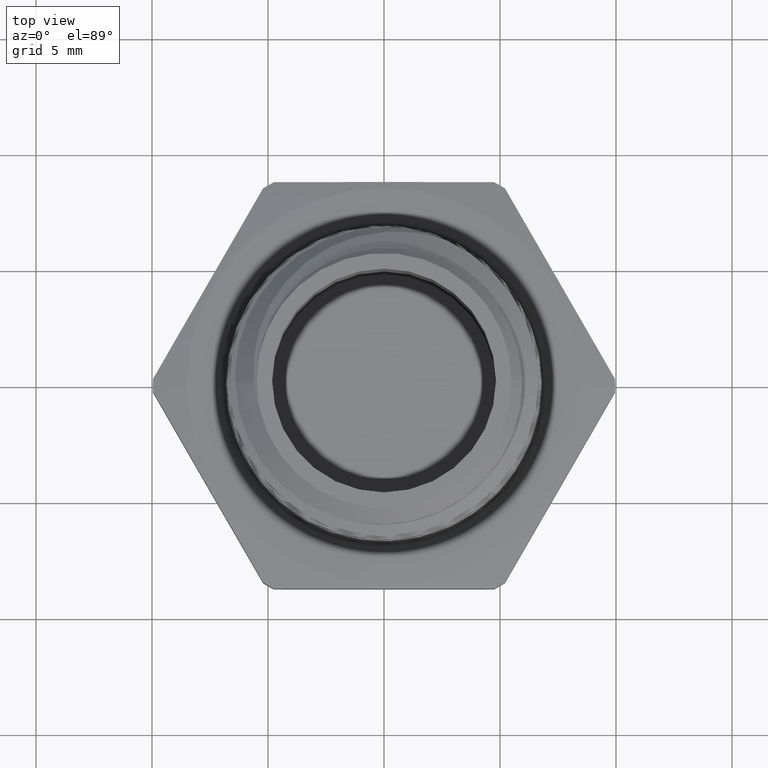
[diagram: clean part render]
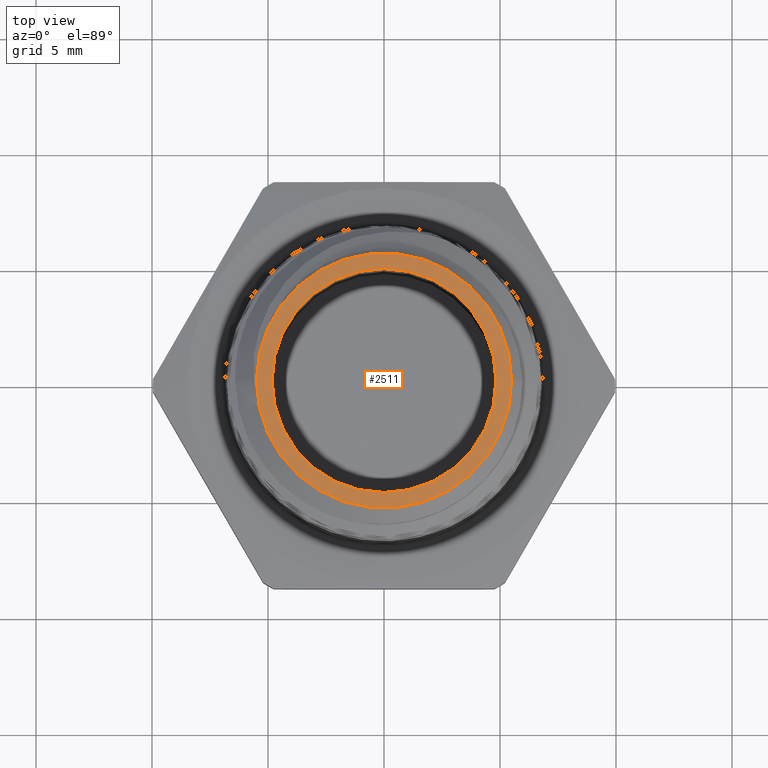
[diagram: same view with one face highlighted and labeled with its STEP entity id]
A machine part, top view. The second image highlights one B-rep face of the part: STEP entity #2511.
In plain terms, the highlighted planar face has unit normal (0, 0, 1).
Its self-contained STEP definition (entity closure, byte-faithful):
#1 = ORIENTED_EDGE ( 'NONE', *, *, #1195, .T. ) ;
#2 = ORIENTED_EDGE ( 'NONE', *, *, #1213, .T. ) ;
#1082 = CARTESIAN_POINT ( 'NONE',  ( 0.1899999999999999500, 2.326828918379970900E-017, 0.5699999999999999500 ) ) ;
#1089 = CARTESIAN_POINT ( 'NONE',  ( -0.2165000000000000800, 0.0000000000000000000, 0.5699999999999999500 ) ) ;
#1116 = CARTESIAN_POINT ( 'NONE',  ( -0.1900000000000000300, 0.0000000000000000000, 0.5699999999999999500 ) ) ;
#1195 = EDGE_CURVE ( 'NONE', #5016, #4987, #2573, .T. ) ;
#1213 = EDGE_CURVE ( 'NONE', #4987, #5016, #2596, .T. ) ;
#1225 = AXIS2_PLACEMENT_3D ( 'NONE', #4456, #4457, #4458 ) ;
#1232 = AXIS2_PLACEMENT_3D ( 'NONE', #3775, #3776, #3777 ) ;
#1255 = AXIS2_PLACEMENT_3D ( 'NONE', #3903, #3904, #3905 ) ;
#1256 = AXIS2_PLACEMENT_3D ( 'NONE', #3953, #3954, #3955 ) ;
#1263 = AXIS2_PLACEMENT_3D ( 'NONE', #2355, #2354, #2359 ) ;
#1416 = ORIENTED_EDGE ( 'NONE', *, *, #1611, .F. ) ;
#1417 = ORIENTED_EDGE ( 'NONE', *, *, #1616, .F. ) ;
#1511 = EDGE_LOOP ( 'NONE', ( #1, #2 ) ) ;
#1513 = EDGE_LOOP ( 'NONE', ( #1416, #1417 ) ) ;
#1611 = EDGE_CURVE ( 'NONE', #4996, #1757, #2453, .T. ) ;
#1616 = EDGE_CURVE ( 'NONE', #1757, #4996, #2459, .T. ) ;
#1757 = VERTEX_POINT ( 'NONE', #2313 ) ;
#2313 = CARTESIAN_POINT ( 'NONE',  ( 0.2165000000000000800, 2.873286106867003800E-017, 0.5699999999999999500 ) ) ;
#2354 = DIRECTION ( 'NONE',  ( 0.0000000000000000000, 0.0000000000000000000, 1.000000000000000000 ) ) ;
#2355 = CARTESIAN_POINT ( 'NONE',  ( 0.0000000000000000000, 0.0000000000000000000, 0.5699999999999999500 ) ) ;
#2357 = PLANE ( 'NONE',  #1263 ) ;
#2359 = DIRECTION ( 'NONE',  ( 1.000000000000000000, 0.0000000000000000000, -0.0000000000000000000 ) ) ;
#2453 = CIRCLE ( 'NONE', #1255, 0.2165000000000000800 ) ;
#2459 = CIRCLE ( 'NONE', #1256, 0.2165000000000000800 ) ;
#2470 = FACE_BOUND ( 'NONE', #1511, .T. ) ;
#2490 = FACE_OUTER_BOUND ( 'NONE', #1513, .T. ) ;
#2511 = ADVANCED_FACE ( 'NONE', ( #2490, #2470 ), #2357, .T. ) ;
#2573 = CIRCLE ( 'NONE', #1225, 0.1899999999999999700 ) ;
#2596 = CIRCLE ( 'NONE', #1232, 0.1899999999999999700 ) ;
#3775 = CARTESIAN_POINT ( 'NONE',  ( -3.414809992080328400E-017, 0.0000000000000000000, 0.5699999999999999500 ) ) ;
#3776 = DIRECTION ( 'NONE',  ( -0.0000000000000000000, -0.0000000000000000000, -1.000000000000000000 ) ) ;
#3777 = DIRECTION ( 'NONE',  ( 1.000000000000000000, 0.0000000000000000000, 0.0000000000000000000 ) ) ;
#3903 = CARTESIAN_POINT ( 'NONE',  ( 0.0000000000000000000, 0.0000000000000000000, 0.5699999999999999500 ) ) ;
#3904 = DIRECTION ( 'NONE',  ( -0.0000000000000000000, -0.0000000000000000000, -1.000000000000000000 ) ) ;
#3905 = DIRECTION ( 'NONE',  ( -1.000000000000000000, 0.0000000000000000000, 0.0000000000000000000 ) ) ;
#3953 = CARTESIAN_POINT ( 'NONE',  ( 0.0000000000000000000, 0.0000000000000000000, 0.5699999999999999500 ) ) ;
#3954 = DIRECTION ( 'NONE',  ( -0.0000000000000000000, -0.0000000000000000000, -1.000000000000000000 ) ) ;
#3955 = DIRECTION ( 'NONE',  ( -1.000000000000000000, 0.0000000000000000000, 0.0000000000000000000 ) ) ;
#4456 = CARTESIAN_POINT ( 'NONE',  ( -3.414809992080328400E-017, 0.0000000000000000000, 0.5699999999999999500 ) ) ;
#4457 = DIRECTION ( 'NONE',  ( -0.0000000000000000000, -0.0000000000000000000, -1.000000000000000000 ) ) ;
#4458 = DIRECTION ( 'NONE',  ( 1.000000000000000000, 0.0000000000000000000, 0.0000000000000000000 ) ) ;
#4987 = VERTEX_POINT ( 'NONE', #1082 ) ;
#4996 = VERTEX_POINT ( 'NONE', #1089 ) ;
#5016 = VERTEX_POINT ( 'NONE', #1116 ) ;